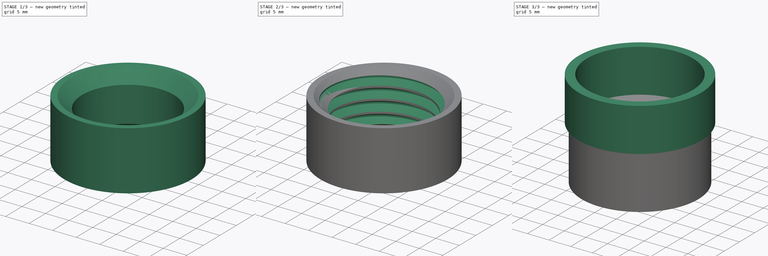
[diagram: build sequence overview — one tinted view per stage of 3, left to right]
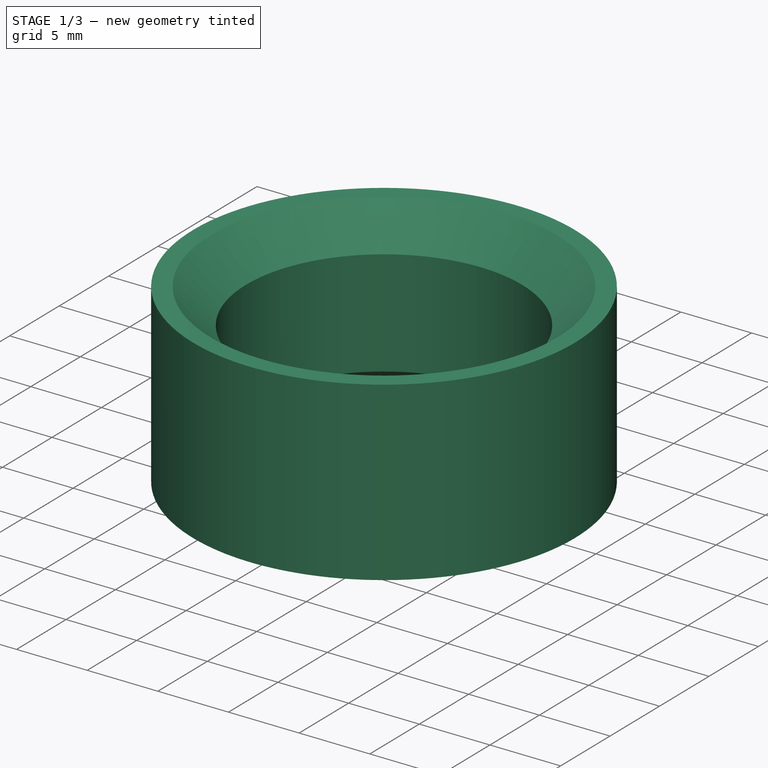
[diagram: stage 1 of 3 — iso view after this stage's code; geometry added in this stage tinted green]
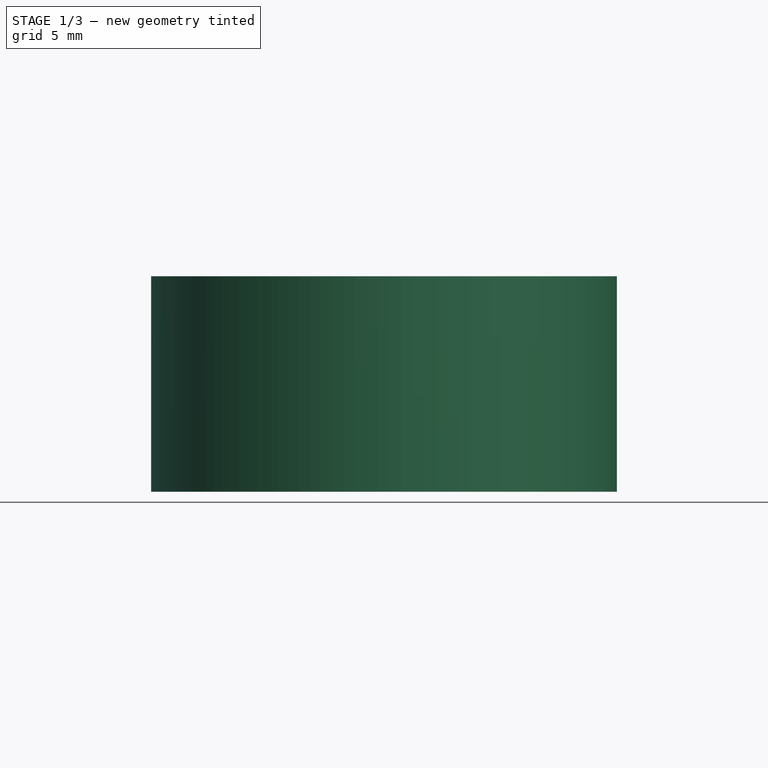
[diagram: stage 1 of 3 — front view after this stage's code; geometry added in this stage tinted green]
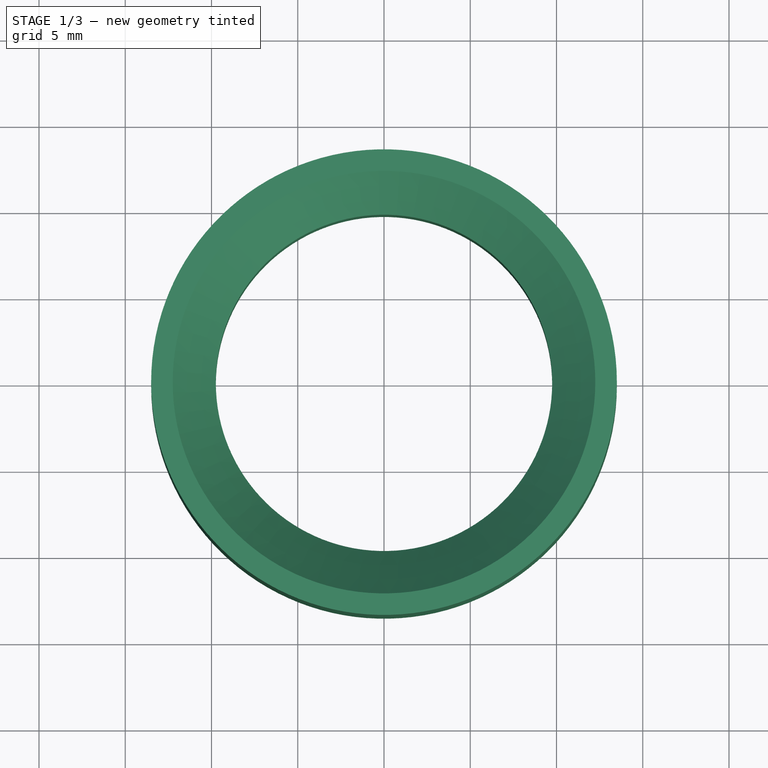
[diagram: stage 1 of 3 — top view after this stage's code; geometry added in this stage tinted green]
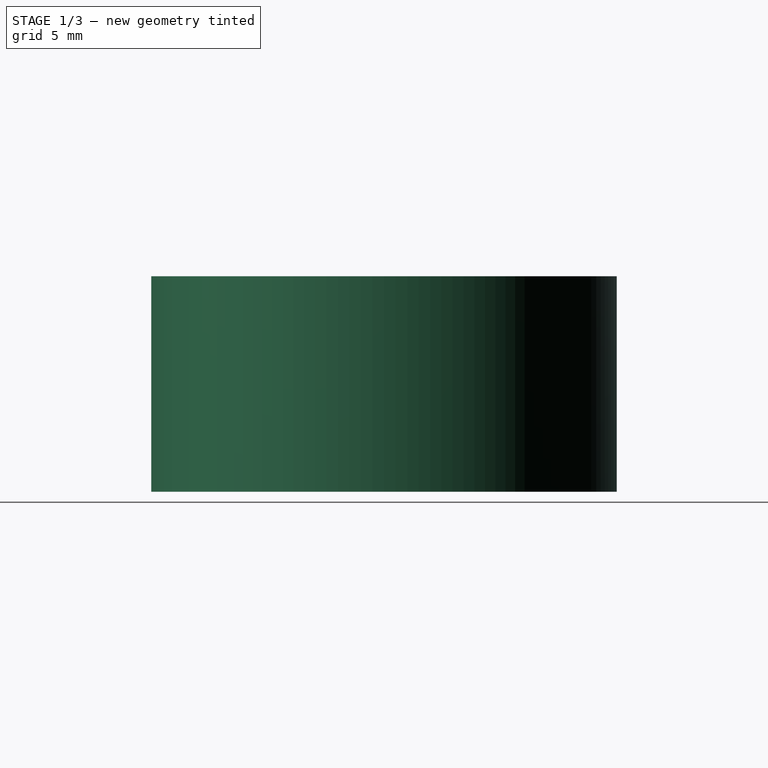
[diagram: stage 1 of 3 — right view after this stage's code; geometry added in this stage tinted green]
FCSTD DOCUMENT  (FreeCAD 0.16R6703 (Git))
Label: nut_22mm
License: CreativeCommons Attribution-ShareAlike
LicenseURL: http://creativecommons.org/licenses/by-sa/4.0/
objects: Sketcher::SketchObject×3, PartDesign::Pad×2, Part::Feature×1, Part::Sweep×1, PartDesign::Chamfer×1, Part::Cut×1, PartDesign::Fillet×1
note: 12 computed .brp shape members not serialized (recipe doc carries the construction recipe); baked Part::Feature solids carry a one-line shape summary decoded from their .brp

FEATURE [Sketcher::SketchObject] Sketch001
  sketch-geometry (2):
    g0: Circle CenterX=0 CenterY=0 CenterZ=0 NormalX=0 NormalY=0 NormalZ=1 Radius=9.75
    g1: Circle CenterX=0 CenterY=0 CenterZ=0 NormalX=0 NormalY=0 NormalZ=1 Radius=13.5
  constraints (4):
    c: Coincident(g0,g-1)
    c: Radius(g0) = 9.75
    c: Coincident(g1,g-1)
    c: Radius(g1) = 13.5
FEATURE [PartDesign::Pad] Pad
  Length = 12.5
  Length2 = 100
  Sketch = -> Sketch001
  Type = 0
FEATURE [PartDesign::Chamfer] Chamfer
  Base = -> Pad [Edge6,Edge5]
  Size = 2.5
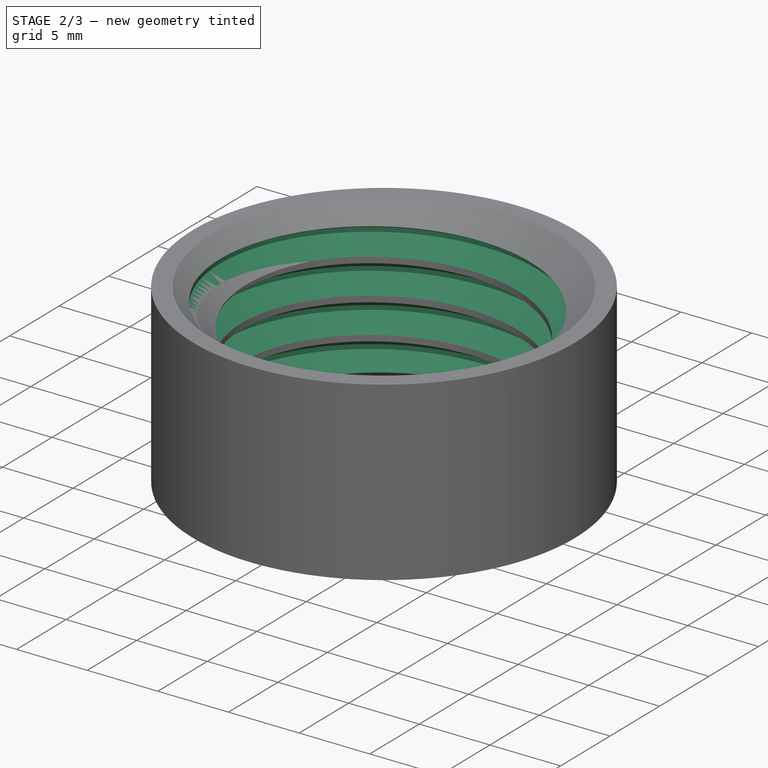
[diagram: stage 2 of 3 — iso view after this stage's code; geometry added in this stage tinted green]
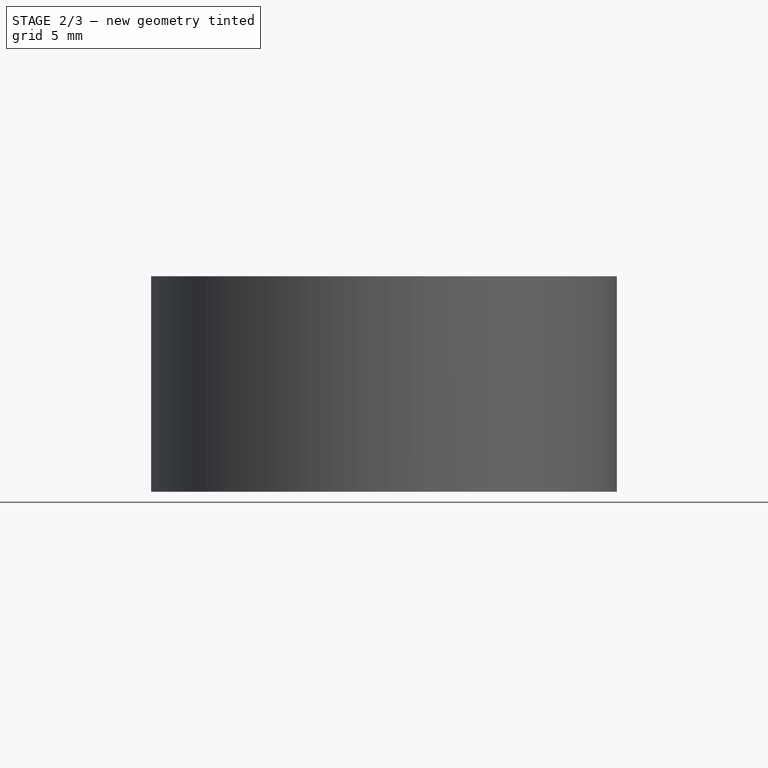
[diagram: stage 2 of 3 — front view after this stage's code; geometry added in this stage tinted green]
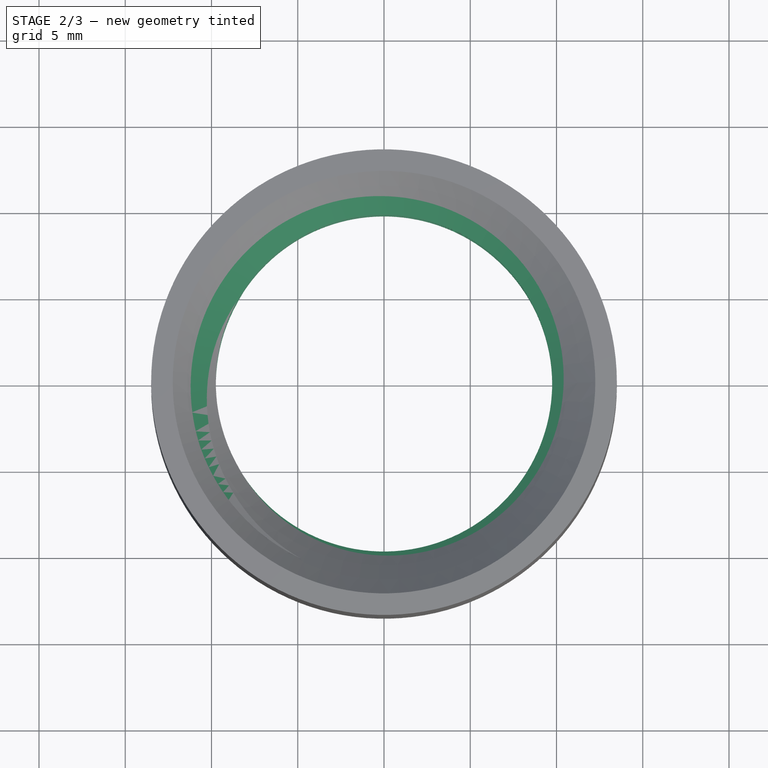
[diagram: stage 2 of 3 — top view after this stage's code; geometry added in this stage tinted green]
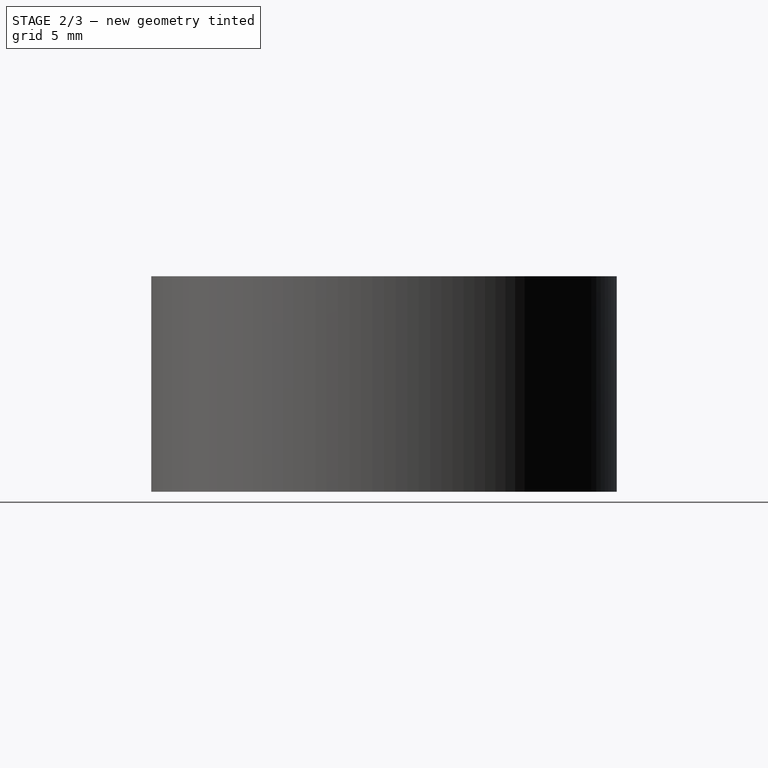
[diagram: stage 2 of 3 — right view after this stage's code; geometry added in this stage tinted green]
FEATURE [Part::Feature] Shape
  shape: bbox 24 x 24 x 45 mm, 0 faces, 0 solids (baked)
FEATURE [Sketcher::SketchObject] Sketch
  Placement = pos=(0,0,0) rot=(-1,0,0;4.71239rad)
  sketch-geometry (4):
    g0: LineSegment StartX=9.39806 StartY=1.25001 StartZ=0 EndX=9.39806 EndY=-1.25001 EndZ=0
    g1: LineSegment StartX=9.39806 StartY=-1.25001 StartZ=0 EndX=11.2925 EndY=-0.15625 EndZ=0
    g2: LineSegment StartX=11.2925 StartY=-0.15625 StartZ=0 EndX=11.2925 EndY=0.15625 EndZ=0
    g3: LineSegment StartX=11.2925 StartY=0.15625 StartZ=0 EndX=9.39806 EndY=1.25001 EndZ=0
  constraints (12):
    c: Vertical(g0)
    c: Coincident(g0,g1)
    c: Coincident(g1,g2)
    c: Vertical(g2)
    c: Coincident(g2,g3)
    c: Coincident(g3,g0)
    c: Symmetric(g2,g1,g-1)
    c: Symmetric(g0,g0,g-1)
    c: Angle(g3,g1) = 1.0472
    c: DistanceX(g-1,g1) = 11.2925
    c: DistanceY(g2,g2) = 0.3125
    c: DistanceX(g0,g1) = 1.89444
FEATURE [Part::Sweep] Sweep
  Frenet = true
  Sections = -> [Sketch]
  Solid = true
  Spine = -> Shape [Edge1]
  Transition = 1
FEATURE [Part::Cut] Cut
  Base = -> Chamfer
  Tool = -> Sweep
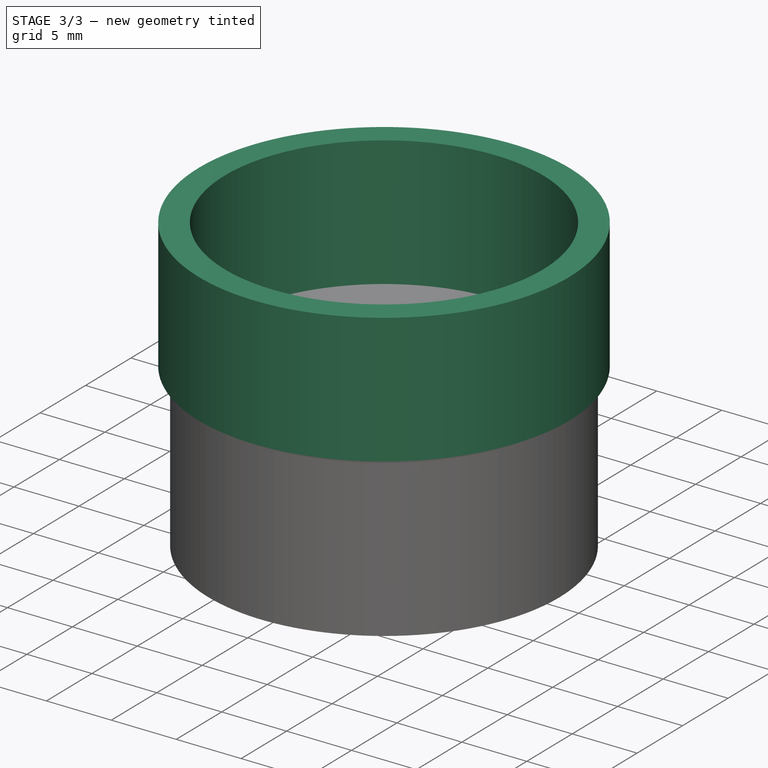
[diagram: stage 3 of 3 — iso view after this stage's code; geometry added in this stage tinted green]
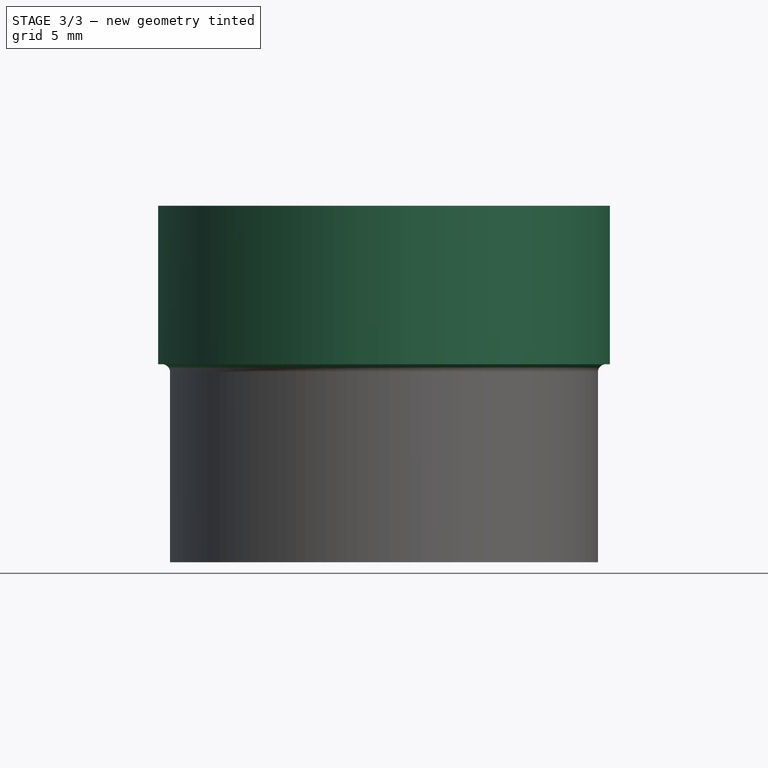
[diagram: stage 3 of 3 — front view after this stage's code; geometry added in this stage tinted green]
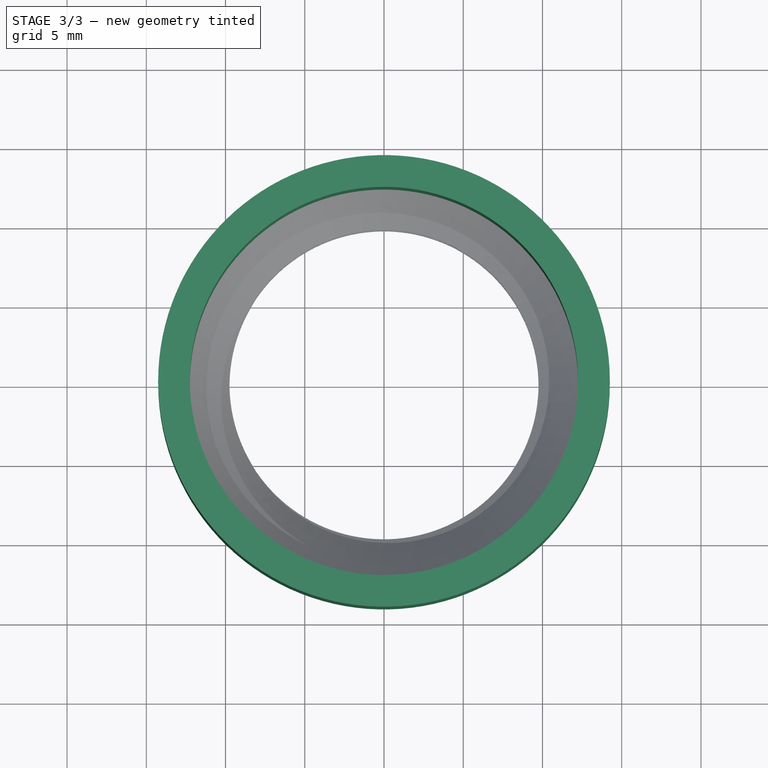
[diagram: stage 3 of 3 — top view after this stage's code; geometry added in this stage tinted green]
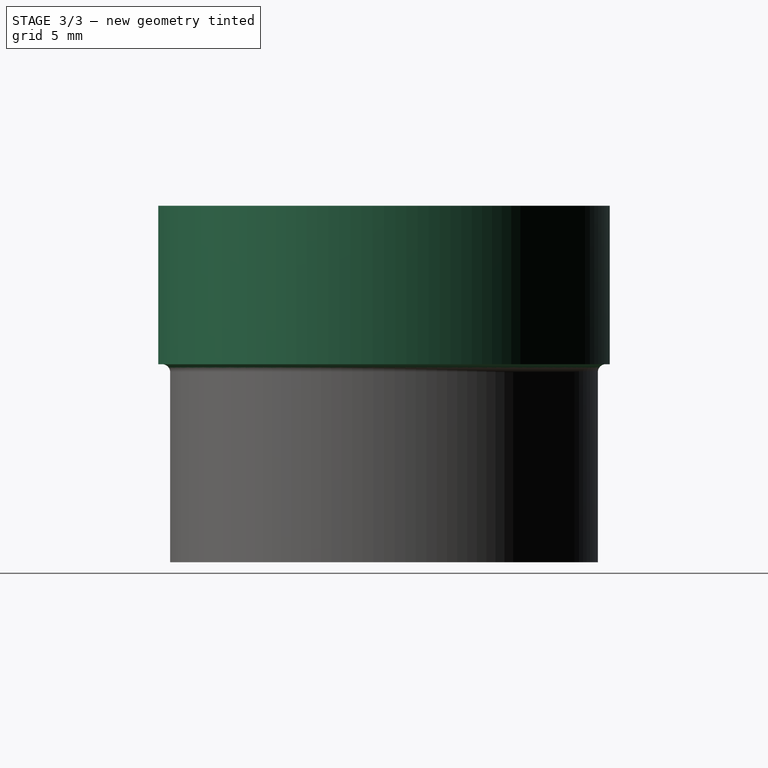
[diagram: stage 3 of 3 — right view after this stage's code; geometry added in this stage tinted green]
FEATURE [Sketcher::SketchObject] Sketch002
  ExternalGeometry = -> [Cut]
  Placement = pos=(0,0,12.5) rot=(0,0,1;0rad)
  Support = -> Cut [Face11]
  sketch-geometry (2):
    g0: Circle CenterX=0 CenterY=0 CenterZ=0 NormalX=0 NormalY=0 NormalZ=1 Radius=12.25
    g1: Circle CenterX=0 CenterY=0 CenterZ=0 NormalX=0 NormalY=0 NormalZ=1 Radius=14.25
  constraints (5):
    c: Coincident(g0,g-1)
    c: Coincident(g1,g-1)
    c: Radius(g-4) = 12.25
    c: Radius(g0) = 12.25
    c: Radius(g1) = 14.25
FEATURE [PartDesign::Pad] Pad001
  Length = 10
  Length2 = 100
  Sketch = -> Sketch002
  Type = 0
FEATURE [PartDesign::Fillet] Fillet
  Base = -> Pad001 [Edge4]
  Radius = 0.5
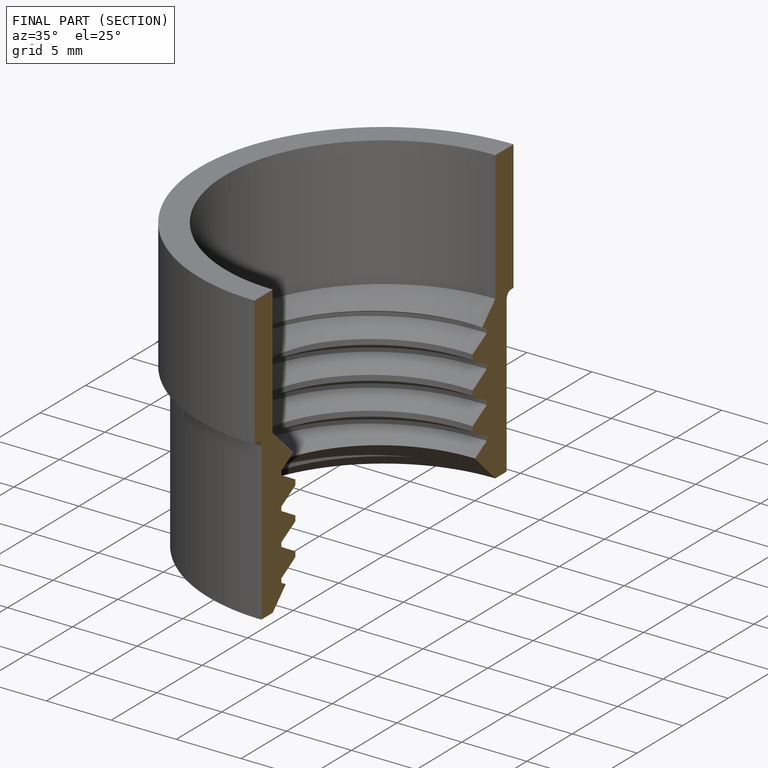
[diagram: finished part — half-section view (interior)]
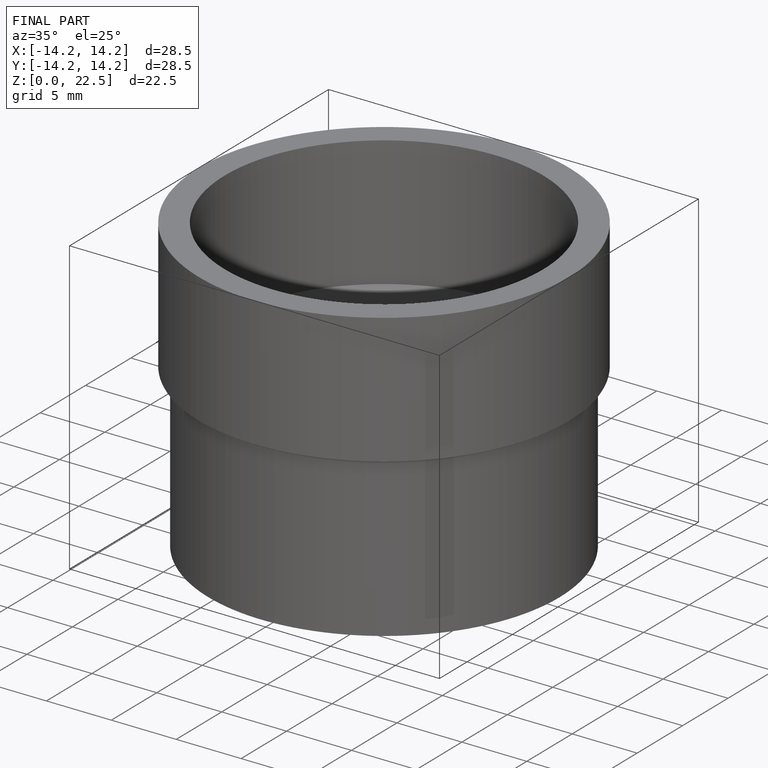
[diagram: finished part — iso view with bounding-box wireframe]
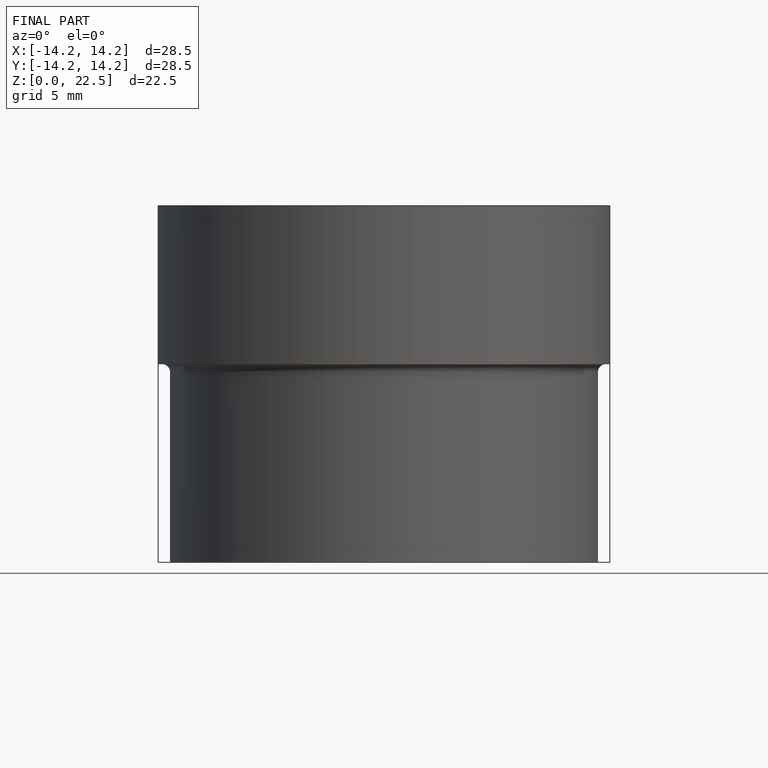
[diagram: finished part — front view with bounding-box wireframe]
